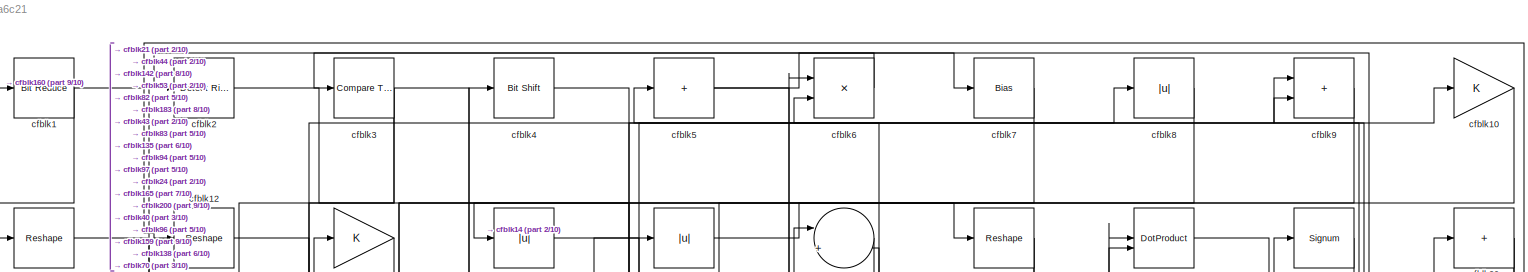
[diagram: root canvas - part 1/10, full width, top band]
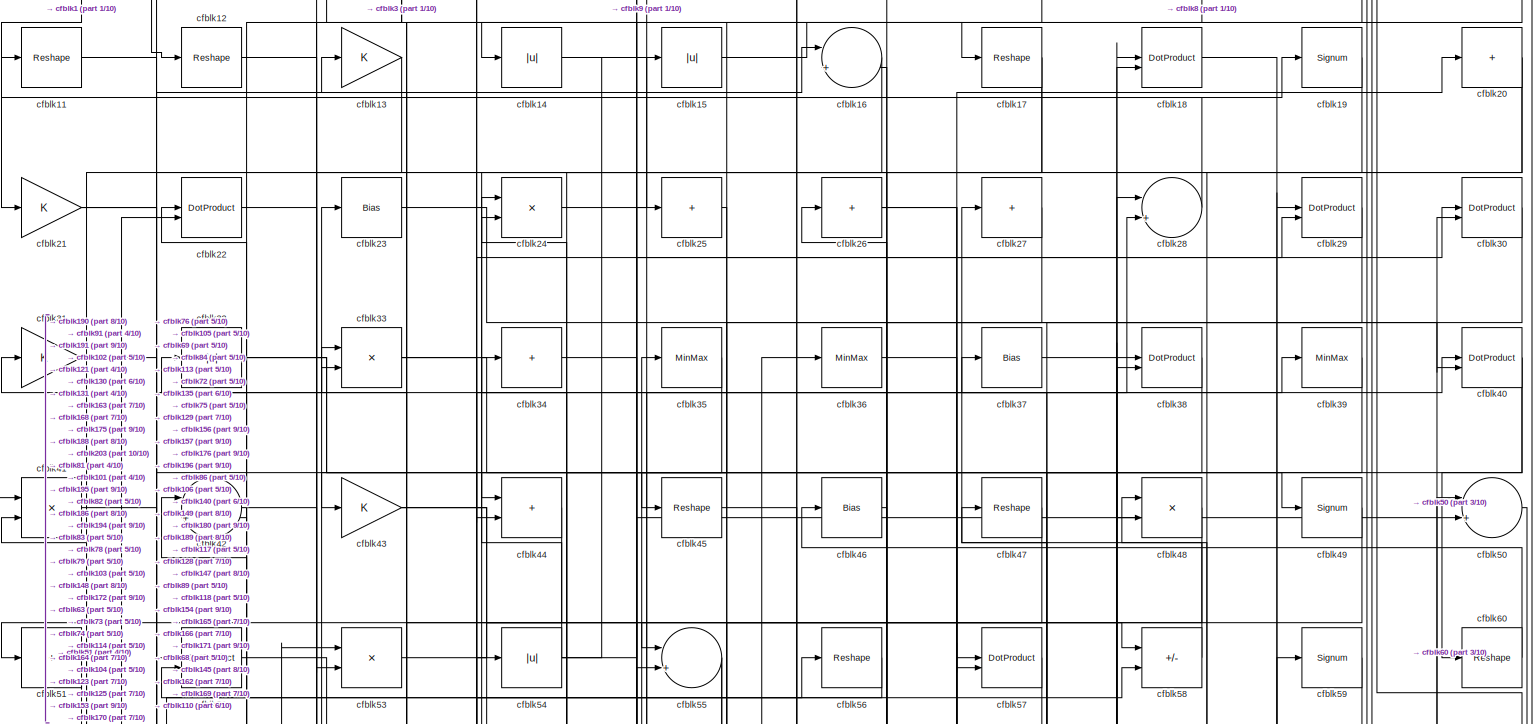
[diagram: root canvas - part 2/10, full width, top band]
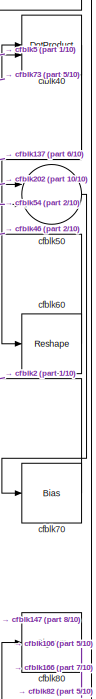
[diagram: root canvas - part 3/10, top right region]
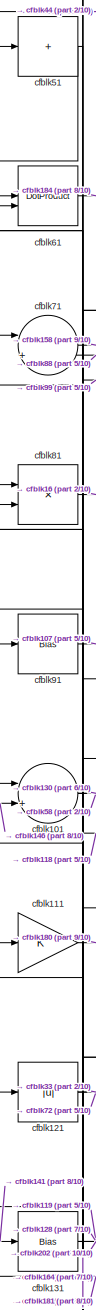
[diagram: root canvas - part 4/10, middle left region]
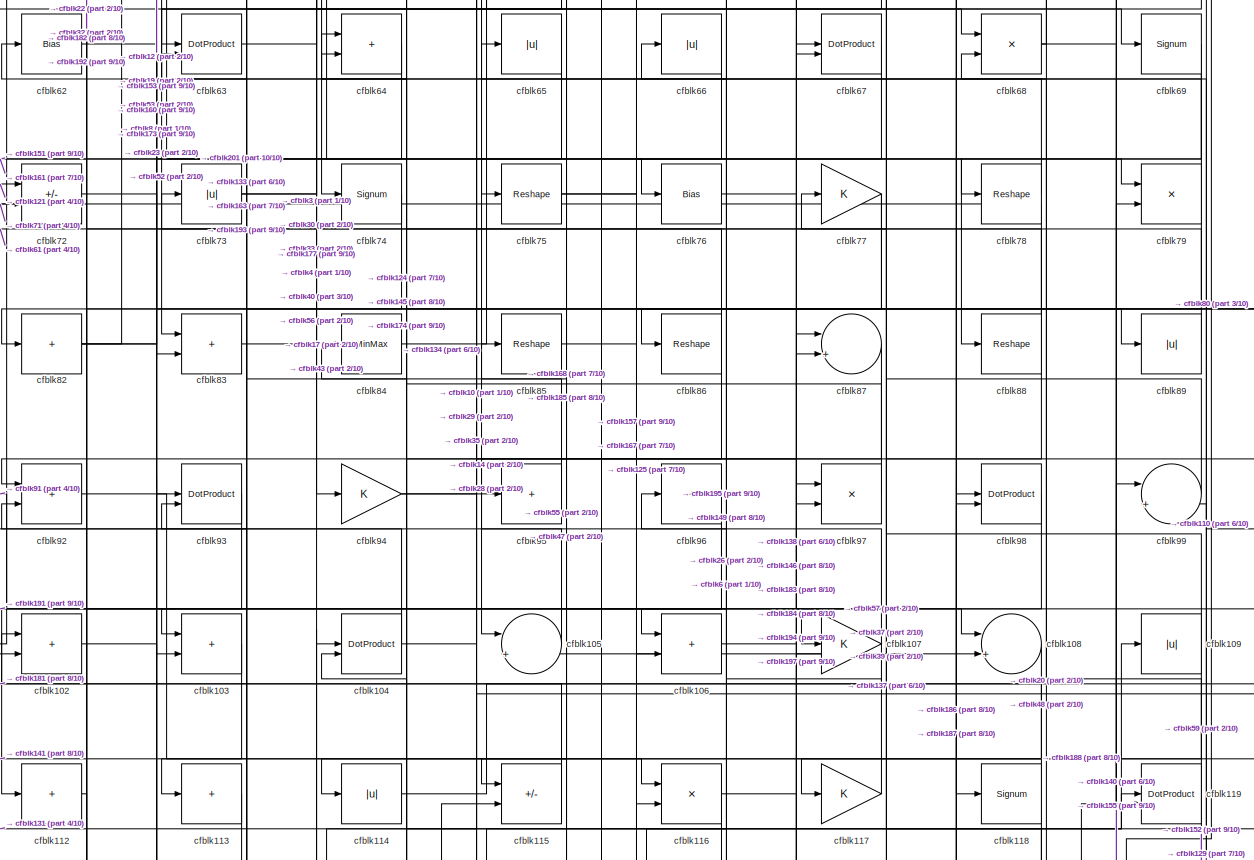
[diagram: root canvas - part 5/10, full width, middle band]
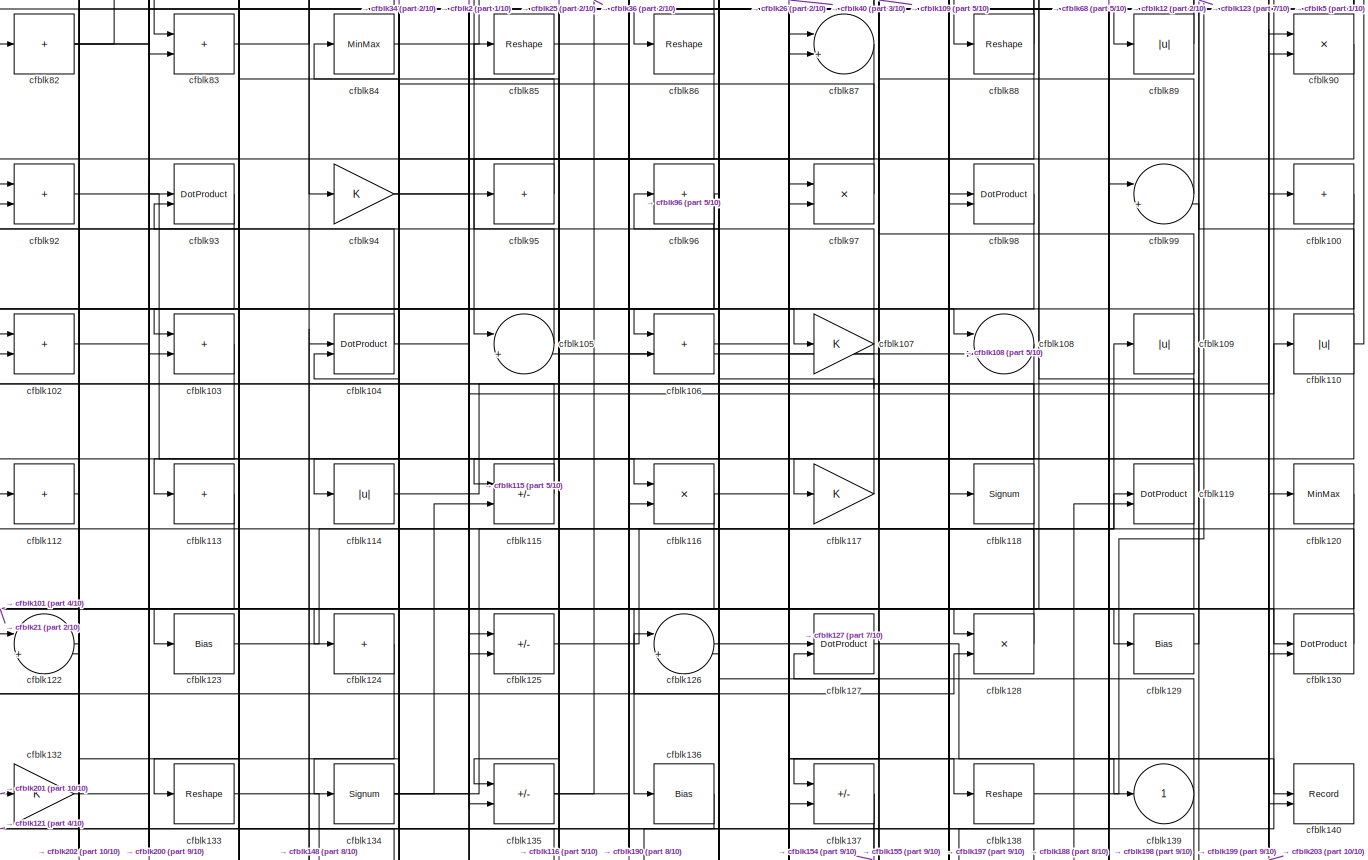
[diagram: root canvas - part 6/10, full width, middle band]
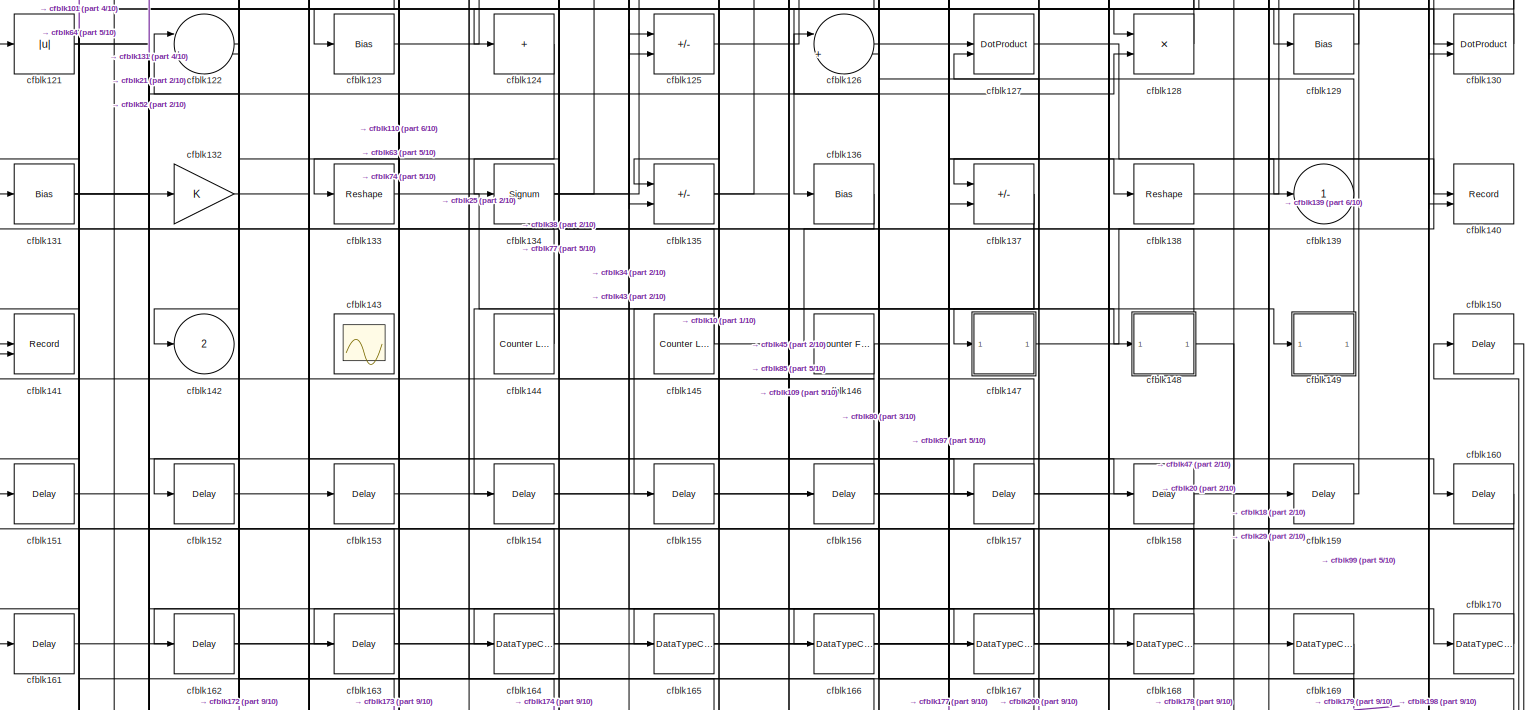
[diagram: root canvas - part 7/10, full width, bottom band]
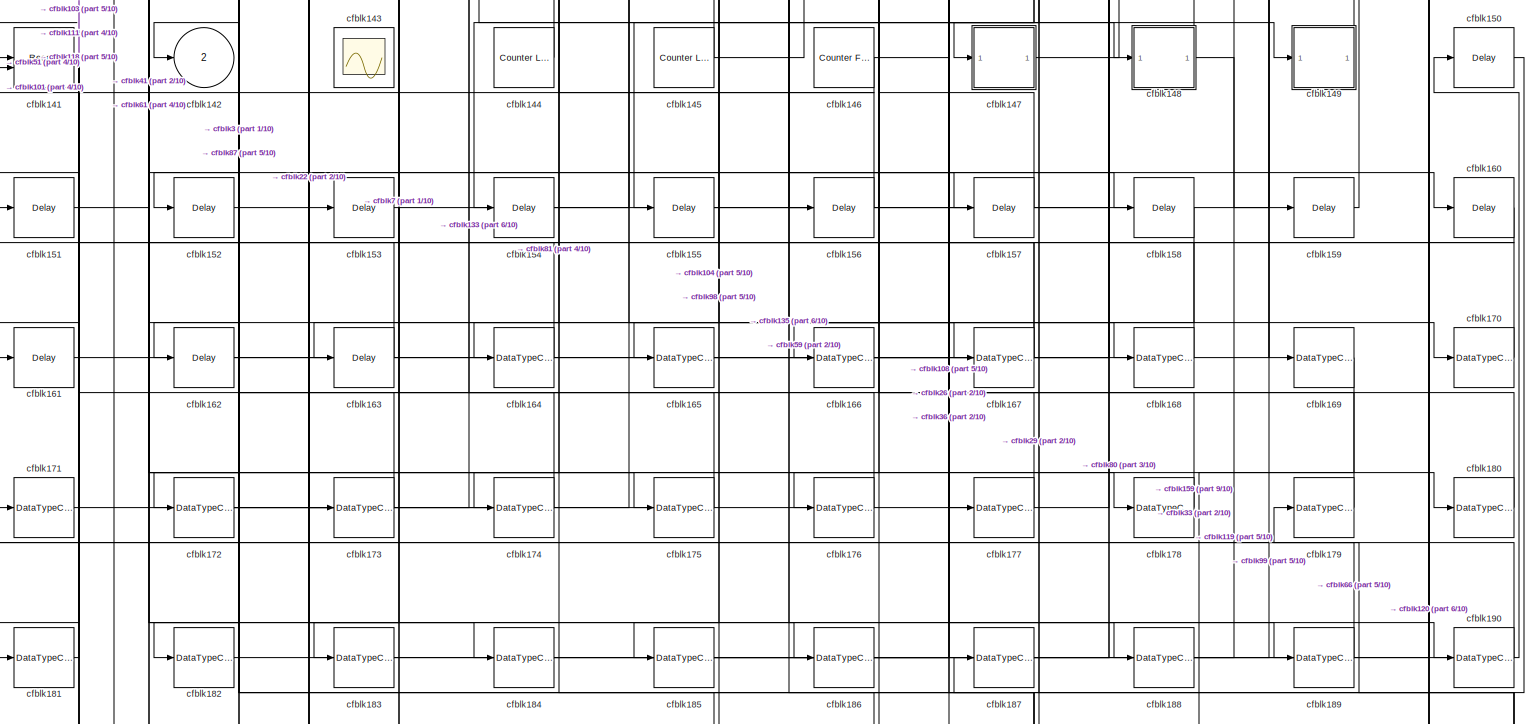
[diagram: root canvas - part 8/10, full width, bottom band]
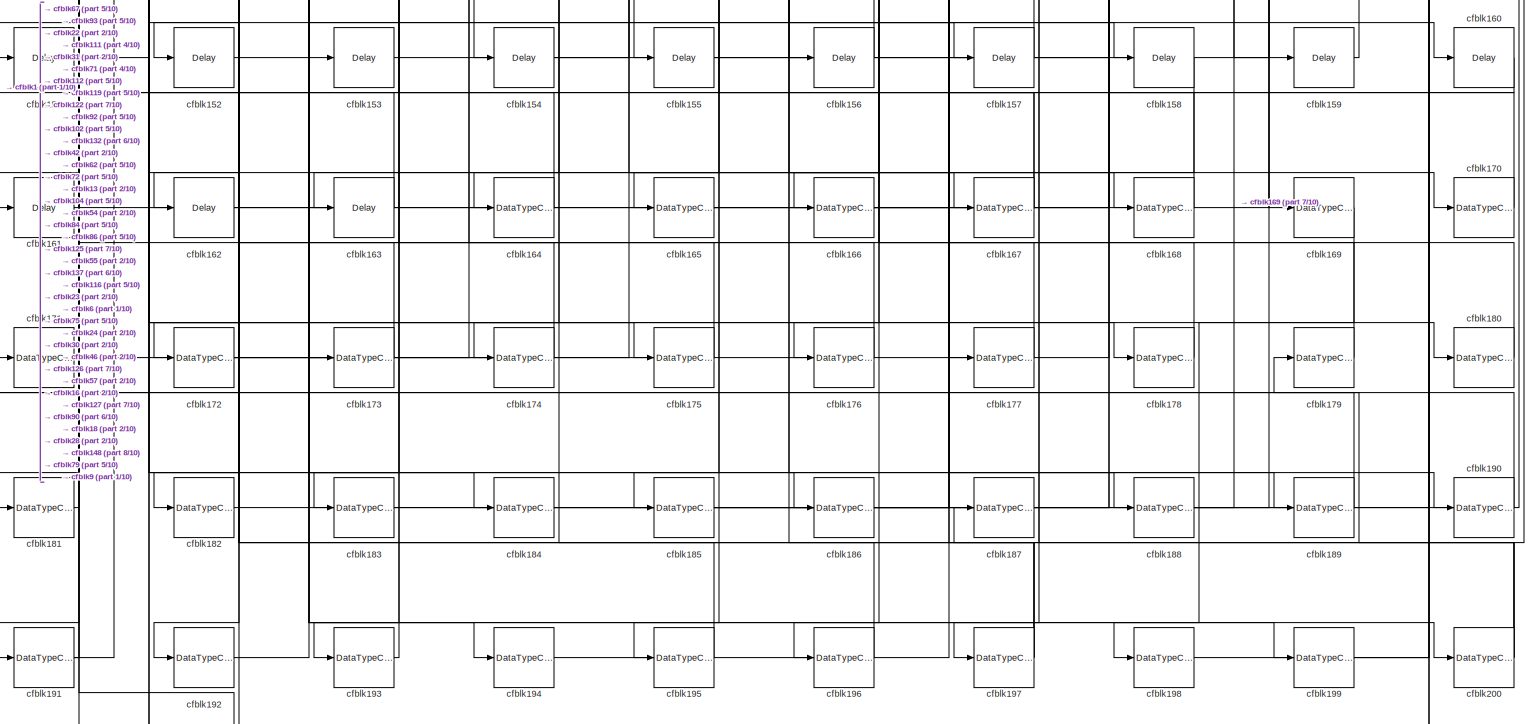
[diagram: root canvas - part 9/10, full width, bottom band]
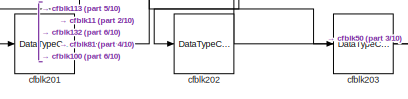
[diagram: root canvas - part 10/10, bottom left region]
MODEL slx_81e3486a6c21
KIND model
CONFIG AbsTol = auto
CONFIG EnableMultiTasking = off
CONFIG FixedStep = auto
CONFIG MaxStep = auto
CONFIG MinStep = auto
CONFIG RelTol = 1e-3
CONFIG SampleTimeConstraint = Unconstrained
CONFIG SolverName = VariableStepAuto
CONFIG StartTime = 0.0
CONFIG StopTime = 10.0
BLOCK [Reference] cfblk1  REF=hdlsllib/Logic and Bit
Operations/Bit Reduce
  SourceBlock = hdlsllib/Logic and Bit\nOperations/Bit Reduce
  SourceType = Bit Reduce
BLOCK [Gain] cfblk10
BLOCK [Sum] cfblk100
  IconShape = rectangular
  Inputs = +
BLOCK [Sum] cfblk101
  Inputs = |++
BLOCK [Sum] cfblk102
  IconShape = rectangular
BLOCK [Sum] cfblk103
  IconShape = rectangular
BLOCK [DotProduct] cfblk104
  OutDataTypeStr = Inherit: Inherit via internal rule
BLOCK [Sum] cfblk105
  Inputs = |++
BLOCK [Sum] cfblk106
  IconShape = rectangular
BLOCK [Gain] cfblk107
BLOCK [Sum] cfblk108
  Inputs = |++
BLOCK [Abs] cfblk109
  SaturateOnIntegerOverflow = off
BLOCK [Reshape] cfblk11
BLOCK [Abs] cfblk110
  SaturateOnIntegerOverflow = off
BLOCK [Gain] cfblk111
BLOCK [Sum] cfblk112
  IconShape = rectangular
  Inputs = +
BLOCK [Sum] cfblk113
  IconShape = rectangular
  Inputs = +
BLOCK [Abs] cfblk114
  SaturateOnIntegerOverflow = off
BLOCK [Sum] cfblk115
  IconShape = rectangular
  Inputs = +-
BLOCK [Product] cfblk116
  Inputs = */
  RndMeth = Zero
  SaturateOnIntegerOverflow = on
BLOCK [Gain] cfblk117
BLOCK [Signum] cfblk118
BLOCK [DotProduct] cfblk119
  OutDataTypeStr = Inherit: Inherit via internal rule
BLOCK [Reshape] cfblk12
BLOCK [MinMax] cfblk120
BLOCK [Abs] cfblk121
  SaturateOnIntegerOverflow = off
BLOCK [Sum] cfblk122
  Inputs = |++
BLOCK [Bias] cfblk123
  Bias = 0.0
  SaturateOnIntegerOverflow = off
BLOCK [Sum] cfblk124
  IconShape = rectangular
  Inputs = +
BLOCK [Sum] cfblk125
  IconShape = rectangular
  Inputs = +-
BLOCK [Sum] cfblk126
  Inputs = |++
BLOCK [DotProduct] cfblk127
  OutDataTypeStr = Inherit: Inherit via internal rule
BLOCK [Product] cfblk128
  Inputs = */
  RndMeth = Zero
  SaturateOnIntegerOverflow = on
BLOCK [Bias] cfblk129
  Bias = 0.0
  SaturateOnIntegerOverflow = off
BLOCK [Gain] cfblk13
BLOCK [DotProduct] cfblk130
  OutDataTypeStr = Inherit: Inherit via internal rule
BLOCK [Bias] cfblk131
  Bias = 0.0
  SaturateOnIntegerOverflow = off
BLOCK [Gain] cfblk132
BLOCK [Reshape] cfblk133
BLOCK [Signum] cfblk134
BLOCK [Sum] cfblk135
  IconShape = rectangular
  Inputs = +-
BLOCK [Bias] cfblk136
  Bias = 0.0
  SaturateOnIntegerOverflow = off
BLOCK [Sum] cfblk137
  IconShape = rectangular
  Inputs = +-
BLOCK [Reshape] cfblk138
BLOCK [Outport] cfblk139
  VectorParamsAs1DForOutWhenUnconnected = off
BLOCK [Abs] cfblk14
  SaturateOnIntegerOverflow = off
BLOCK [Record] cfblk140
  CompatibilityTag = XY
  FileSettingsInternal = {"entries":[{"content":{"excelSettings":{"content":{},"type":"Streamout.ExcelSettings"}},"type":"Streamout.FileSettingStorage","uuid":""}],"packageUris":["http:\/\/schema.mathworks.com\/mf0\/streamout_blocks\/R2020a"],"version":"1.0"}
  Layout = [1 1]
  SignalsInternal = {"entries":[{"content":{"signals":[{"content":{"blockPath":[],"dimensions":[1],"domain":"","lineColor":"#a2142f","plots":[1],"port":1,"signalID":1241,"signalName":"XY Graph:1"},"type":"RecordBlkView.Signal","uuid":""},{"content":{"blockPath":[],"dimensions":[1],"domain":"","lineColor":"#139fff","plots":[1],"port":2,"signalID":1244,"signalName":"XY Graph:2"},"type":"RecordBlkView.Signal","uuid":""}...<+146ch>
  VisualizationBindings = {"xyplotplugin":{"info":[{"series":[{"bindingParametersList":[{"parameter":"X-Axis","signalID":1241,"signalName":"XY Graph:1"},{"parameter":"Y-Axis","signalID":1244,"signalName":"XY Graph:2"}],"seriesID":14841}],"subplotID":1}]}}
  st = -1
BLOCK [Record] cfblk141
  CompatibilityTag = XY
  FileSettingsInternal = {"entries":[{"content":{"excelSettings":{"content":{},"type":"Streamout.ExcelSettings"}},"type":"Streamout.FileSettingStorage","uuid":""}],"packageUris":["http:\/\/schema.mathworks.com\/mf0\/streamout_blocks\/R2020a"],"version":"1.0"}
  Layout = [1 1]
  SignalsInternal = {"entries":[{"content":{"signals":[{"content":{"blockPath":[],"dimensions":[1],"domain":"","lineColor":"#a2142f","plots":[1],"port":1,"signalID":1249,"signalName":"XY Graph:1"},"type":"RecordBlkView.Signal","uuid":""},{"content":{"blockPath":[],"dimensions":[1],"domain":"","lineColor":"#139fff","plots":[1],"port":2,"signalID":1252,"signalName":"XY Graph:2"},"type":"RecordBlkView.Signal","uuid":""}...<+146ch>
  VisualizationBindings = {"xyplotplugin":{"info":[{"series":[{"bindingParametersList":[{"parameter":"X-Axis","signalID":1249,"signalName":"XY Graph:1"},{"parameter":"Y-Axis","signalID":1252,"signalName":"XY Graph:2"}],"seriesID":4770}],"subplotID":1}]}}
  st = -1
BLOCK [Outport] cfblk142
  Port = 2
  VectorParamsAs1DForOutWhenUnconnected = off
BLOCK [Scope] cfblk143
  Floating = on
  NumInputPorts = 1
  ScopeSpecificationString = Simulink.scopes.TimeScopeBlockCfg('CurrentConfiguration', extmgr.ConfigurationSet(extmgr.Configuration('Core','General UI',true,'FigureColor',[0.156862745098039 0.156862745098039 0.156862745098039]),extmgr.Configuration('Core','Source UI',true),extmgr.Configuration('Sources','WiredSimulink',true,'DataLoggingVariableName','ScopeData1','DataLoggingSaveFormat','StructureWithTime','DataLoggingLimitDat...<+2713ch>
BLOCK [Reference] cfblk144  REF=hdlsllib/Sources/Counter
Limited
  SourceBlock = hdlsllib/Sources/Counter\nLimited
  SourceType = Counter Limited
BLOCK [Reference] cfblk145  REF=hdlsllib/Sources/Counter
Limited
  SourceBlock = hdlsllib/Sources/Counter\nLimited
  SourceType = Counter Limited
BLOCK [Reference] cfblk146  REF=hdlsllib/Sources/Counter
Free-Running
  SourceBlock = hdlsllib/Sources/Counter\nFree-Running
  SourceType = Counter Free-Running
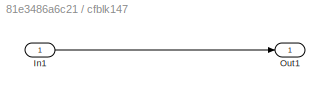
BLOCK [SubSystem] cfblk147
  LibrarySourceBlock = hdlsllib/Ports &\nSubsystems/Subsystem
BLOCK [Inport] cfblk147/In1
BLOCK [Outport] cfblk147/Out1
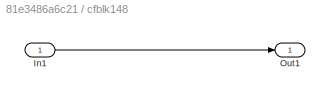
BLOCK [SubSystem] cfblk148
  LibrarySourceBlock = hdlsllib/Ports &\nSubsystems/Subsystem
BLOCK [Inport] cfblk148/In1
BLOCK [Outport] cfblk148/Out1
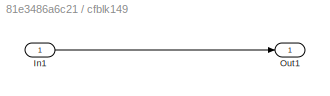
BLOCK [SubSystem] cfblk149
  LibrarySourceBlock = hdlsllib/Ports &\nSubsystems/Subsystem
BLOCK [Inport] cfblk149/In1
BLOCK [Outport] cfblk149/Out1
BLOCK [Abs] cfblk15
  SaturateOnIntegerOverflow = off
BLOCK [Delay] cfblk150
  InputPortMap = u0
  SampleTime = 1
BLOCK [Delay] cfblk151
  InputPortMap = u0
  SampleTime = 1
BLOCK [Delay] cfblk152
  InputPortMap = u0
  SampleTime = 1
BLOCK [Delay] cfblk153
  InputPortMap = u0
  SampleTime = 1
BLOCK [Delay] cfblk154
  InputPortMap = u0
  SampleTime = 1
BLOCK [Delay] cfblk155
  InputPortMap = u0
  SampleTime = 1
BLOCK [Delay] cfblk156
  InputPortMap = u0
  SampleTime = 1
BLOCK [Delay] cfblk157
  InputPortMap = u0
  SampleTime = 1
BLOCK [Delay] cfblk158
  InputPortMap = u0
  SampleTime = 1
BLOCK [Delay] cfblk159
  InputPortMap = u0
  SampleTime = 1
BLOCK [Sum] cfblk16
  Inputs = |++
BLOCK [Delay] cfblk160
  InputPortMap = u0
  SampleTime = 1
BLOCK [Delay] cfblk161
  InputPortMap = u0
  SampleTime = 1
BLOCK [Delay] cfblk162
  InputPortMap = u0
  SampleTime = 1
BLOCK [Delay] cfblk163
  InputPortMap = u0
  SampleTime = 1
BLOCK [DataTypeConversion] cfblk164
  OutDataTypeStr = uint8
  RndMeth = Floor
  SaturateOnIntegerOverflow = off
BLOCK [DataTypeConversion] cfblk165
  OutDataTypeStr = uint8
  RndMeth = Floor
  SaturateOnIntegerOverflow = off
BLOCK [DataTypeConversion] cfblk166
  OutDataTypeStr = uint8
  RndMeth = Floor
  SaturateOnIntegerOverflow = off
BLOCK [DataTypeConversion] cfblk167
  RndMeth = Floor
  SaturateOnIntegerOverflow = off
BLOCK [DataTypeConversion] cfblk168
  OutDataTypeStr = uint8
  RndMeth = Floor
  SaturateOnIntegerOverflow = off
BLOCK [DataTypeConversion] cfblk169
  OutDataTypeStr = uint8
  RndMeth = Floor
  SaturateOnIntegerOverflow = off
BLOCK [Reshape] cfblk17
BLOCK [DataTypeConversion] cfblk170
  OutDataTypeStr = uint8
  RndMeth = Floor
  SaturateOnIntegerOverflow = off
BLOCK [DataTypeConversion] cfblk171
  OutDataTypeStr = uint8
  RndMeth = Floor
  SaturateOnIntegerOverflow = off
BLOCK [DataTypeConversion] cfblk172
  RndMeth = Floor
  SaturateOnIntegerOverflow = off
BLOCK [DataTypeConversion] cfblk173
  OutDataTypeStr = uint8
  RndMeth = Floor
  SaturateOnIntegerOverflow = off
BLOCK [DataTypeConversion] cfblk174
  OutDataTypeStr = uint8
  RndMeth = Floor
  SaturateOnIntegerOverflow = off
BLOCK [DataTypeConversion] cfblk175
  OutDataTypeStr = uint8
  RndMeth = Floor
  SaturateOnIntegerOverflow = off
BLOCK [DataTypeConversion] cfblk176
  OutDataTypeStr = uint8
  RndMeth = Floor
  SaturateOnIntegerOverflow = off
BLOCK [DataTypeConversion] cfblk177
  OutDataTypeStr = uint8
  RndMeth = Floor
  SaturateOnIntegerOverflow = off
BLOCK [DataTypeConversion] cfblk178
  OutDataTypeStr = uint8
  RndMeth = Floor
  SaturateOnIntegerOverflow = off
BLOCK [DataTypeConversion] cfblk179
  OutDataTypeStr = uint8
  RndMeth = Floor
  SaturateOnIntegerOverflow = off
BLOCK [DotProduct] cfblk18
  OutDataTypeStr = Inherit: Inherit via internal rule
BLOCK [DataTypeConversion] cfblk180
  OutDataTypeStr = uint8
  RndMeth = Floor
  SaturateOnIntegerOverflow = off
BLOCK [DataTypeConversion] cfblk181
  OutDataTypeStr = uint8
  RndMeth = Floor
  SaturateOnIntegerOverflow = off
BLOCK [DataTypeConversion] cfblk182
  OutDataTypeStr = uint8
  RndMeth = Floor
  SaturateOnIntegerOverflow = off
BLOCK [DataTypeConversion] cfblk183
  OutDataTypeStr = uint8
  RndMeth = Floor
  SaturateOnIntegerOverflow = off
BLOCK [DataTypeConversion] cfblk184
  OutDataTypeStr = uint8
  RndMeth = Floor
  SaturateOnIntegerOverflow = off
BLOCK [DataTypeConversion] cfblk185
  OutDataTypeStr = uint8
  RndMeth = Floor
  SaturateOnIntegerOverflow = off
BLOCK [DataTypeConversion] cfblk186
  OutDataTypeStr = uint8
  RndMeth = Floor
  SaturateOnIntegerOverflow = off
BLOCK [DataTypeConversion] cfblk187
  OutDataTypeStr = uint8
  RndMeth = Floor
  SaturateOnIntegerOverflow = off
BLOCK [DataTypeConversion] cfblk188
  RndMeth = Floor
  SaturateOnIntegerOverflow = off
BLOCK [DataTypeConversion] cfblk189
  OutDataTypeStr = uint8
  RndMeth = Floor
  SaturateOnIntegerOverflow = off
BLOCK [Signum] cfblk19
BLOCK [DataTypeConversion] cfblk190
  OutDataTypeStr = uint8
  RndMeth = Floor
  SaturateOnIntegerOverflow = off
BLOCK [DataTypeConversion] cfblk191
  RndMeth = Floor
  SaturateOnIntegerOverflow = off
BLOCK [DataTypeConversion] cfblk192
  OutDataTypeStr = uint8
  RndMeth = Floor
  SaturateOnIntegerOverflow = off
BLOCK [DataTypeConversion] cfblk193
  OutDataTypeStr = uint8
  RndMeth = Floor
  SaturateOnIntegerOverflow = off
BLOCK [DataTypeConversion] cfblk194
  OutDataTypeStr = uint8
  RndMeth = Floor
  SaturateOnIntegerOverflow = off
BLOCK [DataTypeConversion] cfblk195
  OutDataTypeStr = uint8
  RndMeth = Floor
  SaturateOnIntegerOverflow = off
BLOCK [DataTypeConversion] cfblk196
  OutDataTypeStr = uint8
  RndMeth = Floor
  SaturateOnIntegerOverflow = off
BLOCK [DataTypeConversion] cfblk197
  RndMeth = Floor
  SaturateOnIntegerOverflow = off
BLOCK [DataTypeConversion] cfblk198
  OutDataTypeStr = uint8
  RndMeth = Floor
  SaturateOnIntegerOverflow = off
BLOCK [DataTypeConversion] cfblk199
  OutDataTypeStr = uint8
  RndMeth = Floor
  SaturateOnIntegerOverflow = off
BLOCK [Reference] cfblk2  REF=hdlsllib/Logic and Bit
Operations/Detect Rise
Positive
  SourceBlock = hdlsllib/Logic and Bit\nOperations/Detect Rise\nPositive
  SourceType = Detect Rise Positive
BLOCK [Sum] cfblk20
  IconShape = rectangular
  Inputs = +
BLOCK [DataTypeConversion] cfblk200
  RndMeth = Floor
  SaturateOnIntegerOverflow = off
BLOCK [DataTypeConversion] cfblk201
  OutDataTypeStr = uint8
  RndMeth = Floor
  SaturateOnIntegerOverflow = off
BLOCK [DataTypeConversion] cfblk202
  RndMeth = Floor
  SaturateOnIntegerOverflow = off
BLOCK [DataTypeConversion] cfblk203
  OutDataTypeStr = uint8
  RndMeth = Floor
  SaturateOnIntegerOverflow = off
BLOCK [Gain] cfblk21
BLOCK [DotProduct] cfblk22
  OutDataTypeStr = Inherit: Inherit via internal rule
BLOCK [Bias] cfblk23
  Bias = 0.0
  SaturateOnIntegerOverflow = off
BLOCK [Product] cfblk24
  Inputs = */
  RndMeth = Zero
  SaturateOnIntegerOverflow = on
BLOCK [Sum] cfblk25
  IconShape = rectangular
  Inputs = +
BLOCK [Sum] cfblk26
  IconShape = rectangular
  Inputs = +
BLOCK [Sum] cfblk27
  IconShape = rectangular
  Inputs = +
BLOCK [Sum] cfblk28
  Inputs = |++
BLOCK [DotProduct] cfblk29
  OutDataTypeStr = Inherit: Inherit via internal rule
BLOCK [Reference] cfblk3  REF=hdlsllib/Logic and Bit
Operations/Compare
To Zero
  SourceBlock = hdlsllib/Logic and Bit\nOperations/Compare\nTo Zero
  SourceType = Compare To Zero
BLOCK [DotProduct] cfblk30
  OutDataTypeStr = Inherit: Inherit via internal rule
BLOCK [Gain] cfblk31
BLOCK [Abs] cfblk32
  SaturateOnIntegerOverflow = off
BLOCK [Product] cfblk33
  Inputs = */
  RndMeth = Zero
  SaturateOnIntegerOverflow = on
BLOCK [Sum] cfblk34
  IconShape = rectangular
  Inputs = +
BLOCK [MinMax] cfblk35
BLOCK [MinMax] cfblk36
BLOCK [Bias] cfblk37
  Bias = 0.0
  SaturateOnIntegerOverflow = off
BLOCK [DotProduct] cfblk38
  OutDataTypeStr = Inherit: Inherit via internal rule
BLOCK [MinMax] cfblk39
BLOCK [Reference] cfblk4  REF=hdlsllib/Logic and Bit
Operations/Bit Shift
  SourceBlock = hdlsllib/Logic and Bit\nOperations/Bit Shift
  SourceType = Bit Shift
BLOCK [DotProduct] cfblk40
  OutDataTypeStr = Inherit: Inherit via internal rule
BLOCK [Product] cfblk41
  Inputs = */
  RndMeth = Zero
  SaturateOnIntegerOverflow = on
BLOCK [Sum] cfblk42
  Inputs = |++
BLOCK [Gain] cfblk43
BLOCK [Sum] cfblk44
  IconShape = rectangular
BLOCK [Reshape] cfblk45
BLOCK [Bias] cfblk46
  Bias = 0.0
  SaturateOnIntegerOverflow = off
BLOCK [Reshape] cfblk47
BLOCK [Product] cfblk48
  Inputs = */
  RndMeth = Zero
  SaturateOnIntegerOverflow = on
BLOCK [Signum] cfblk49
BLOCK [Sum] cfblk5
  IconShape = rectangular
  Inputs = +
BLOCK [Sum] cfblk50
  Inputs = |++
BLOCK [Sum] cfblk51
  IconShape = rectangular
  Inputs = +
BLOCK [DotProduct] cfblk52
  OutDataTypeStr = Inherit: Inherit via internal rule
BLOCK [Product] cfblk53
  Inputs = */
  RndMeth = Zero
  SaturateOnIntegerOverflow = on
BLOCK [Abs] cfblk54
  SaturateOnIntegerOverflow = off
BLOCK [Sum] cfblk55
  Inputs = |++
BLOCK [Reshape] cfblk56
BLOCK [DotProduct] cfblk57
  OutDataTypeStr = Inherit: Inherit via internal rule
BLOCK [Sum] cfblk58
  IconShape = rectangular
  Inputs = +-
BLOCK [Signum] cfblk59
BLOCK [Product] cfblk6
  Inputs = */
  RndMeth = Zero
  SaturateOnIntegerOverflow = on
BLOCK [Reshape] cfblk60
BLOCK [DotProduct] cfblk61
  OutDataTypeStr = Inherit: Inherit via internal rule
BLOCK [Bias] cfblk62
  Bias = 0.0
  SaturateOnIntegerOverflow = off
BLOCK [DotProduct] cfblk63
  OutDataTypeStr = Inherit: Inherit via internal rule
BLOCK [Sum] cfblk64
  IconShape = rectangular
BLOCK [Abs] cfblk65
  SaturateOnIntegerOverflow = off
BLOCK [Abs] cfblk66
  SaturateOnIntegerOverflow = off
BLOCK [DotProduct] cfblk67
  OutDataTypeStr = Inherit: Inherit via internal rule
BLOCK [Product] cfblk68
  Inputs = */
  RndMeth = Zero
  SaturateOnIntegerOverflow = on
BLOCK [Signum] cfblk69
BLOCK [Bias] cfblk7
  Bias = 0.0
  SaturateOnIntegerOverflow = off
BLOCK [Bias] cfblk70
  Bias = 0.0
  SaturateOnIntegerOverflow = off
BLOCK [Sum] cfblk71
  Inputs = |++
BLOCK [Sum] cfblk72
  IconShape = rectangular
  Inputs = +-
BLOCK [Abs] cfblk73
  SaturateOnIntegerOverflow = off
BLOCK [Signum] cfblk74
BLOCK [Reshape] cfblk75
BLOCK [Bias] cfblk76
  Bias = 0.0
  SaturateOnIntegerOverflow = off
BLOCK [Gain] cfblk77
BLOCK [Reshape] cfblk78
BLOCK [Product] cfblk79
  Inputs = */
  RndMeth = Zero
  SaturateOnIntegerOverflow = on
BLOCK [Abs] cfblk8
  SaturateOnIntegerOverflow = off
BLOCK [Signum] cfblk80
BLOCK [Product] cfblk81
  Inputs = */
  RndMeth = Zero
  SaturateOnIntegerOverflow = on
BLOCK [Sum] cfblk82
  IconShape = rectangular
  Inputs = +
BLOCK [Sum] cfblk83
  IconShape = rectangular
BLOCK [MinMax] cfblk84
BLOCK [Reshape] cfblk85
BLOCK [Reshape] cfblk86
BLOCK [Sum] cfblk87
  Inputs = |++
BLOCK [Reshape] cfblk88
BLOCK [Abs] cfblk89
  SaturateOnIntegerOverflow = off
BLOCK [Sum] cfblk9
  IconShape = rectangular
BLOCK [Product] cfblk90
  Inputs = */
  RndMeth = Zero
  SaturateOnIntegerOverflow = on
BLOCK [Bias] cfblk91
  Bias = 0.0
  SaturateOnIntegerOverflow = off
BLOCK [Sum] cfblk92
  IconShape = rectangular
BLOCK [DotProduct] cfblk93
  OutDataTypeStr = Inherit: Inherit via internal rule
BLOCK [Gain] cfblk94
BLOCK [Sum] cfblk95
  IconShape = rectangular
  Inputs = +
BLOCK [Sum] cfblk96
  IconShape = rectangular
  Inputs = +
BLOCK [Product] cfblk97
  Inputs = */
  RndMeth = Zero
  SaturateOnIntegerOverflow = on
BLOCK [DotProduct] cfblk98
  OutDataTypeStr = Inherit: Inherit via internal rule
BLOCK [Sum] cfblk99
  Inputs = |++
LINE cfblk100:1 -> cfblk202:1
NET cfblk101:1 -> cfblk130:1, cfblk58:2
LINE cfblk102:1 -> cfblk160:1
LINE cfblk103:1 -> cfblk141:1
NET cfblk104:1 -> cfblk22:1, cfblk29:2
LINE cfblk105:1 -> cfblk35:1
LINE cfblk106:1 -> cfblk20:1
NET cfblk107:1 -> cfblk105:2, cfblk71:1
LINE cfblk108:1 -> cfblk134:1
NET cfblk109:1 -> cfblk137:1, cfblk77:1
LINE cfblk10:1 -> cfblk165:1
NET cfblk110:1 -> cfblk123:1, cfblk12:1, cfblk68:2
LINE cfblk111:1 -> cfblk180:1
LINE cfblk112:1 -> cfblk192:1
LINE cfblk113:1 -> cfblk201:1
LINE cfblk114:1 -> cfblk30:2
LINE cfblk115:1 -> cfblk102:1
NET cfblk116:1 -> cfblk138:1, cfblk195:1
LINE cfblk117:1 -> cfblk26:1
NET cfblk118:1 -> cfblk181:1, cfblk61:2
NET cfblk119:1 -> cfblk152:1, cfblk65:1
LINE cfblk11:1 -> cfblk203:1
LINE cfblk120:1 -> cfblk136:1
NET cfblk121:1 -> cfblk33:1, cfblk72:1
LINE cfblk122:1 -> cfblk172:1
LINE cfblk123:1 -> cfblk25:1
LINE cfblk124:1 -> cfblk162:1
LINE cfblk125:1 -> cfblk109:1
LINE cfblk126:1 -> cfblk177:1
LINE cfblk127:1 -> cfblk139:1
LINE cfblk128:1 -> cfblk47:1
LINE cfblk129:1 -> cfblk99:2
LINE cfblk12:1 -> cfblk89:1
LINE cfblk130:1 -> cfblk34:1
NET cfblk131:1 -> cfblk119:1, cfblk128:2, cfblk39:1
LINE cfblk132:1 -> cfblk200:1
LINE cfblk133:1 -> cfblk148:1
NET cfblk134:1 -> cfblk110:1, cfblk115:2, cfblk96:1
NET cfblk135:1 -> cfblk190:1, cfblk36:1
LINE cfblk136:1 -> cfblk121:1
NET cfblk137:1 -> cfblk154:1, cfblk155:1
LINE cfblk138:1 -> cfblk5:1
LINE cfblk13:1 -> cfblk51:1
LINE cfblk144:1 -> cfblk81:1
NET cfblk145:1 -> cfblk104:2, cfblk59:1
NET cfblk146:1 -> cfblk101:2, cfblk108:2
LINE cfblk147/In1:1 -> cfblk147/Out1:1
LINE cfblk147:1 -> cfblk80:1
LINE cfblk148/In1:1 -> cfblk148/Out1:1
NET cfblk148:1 -> cfblk159:1, cfblk33:2
LINE cfblk149/In1:1 -> cfblk149/Out1:1
LINE cfblk149:1 -> cfblk66:1
LINE cfblk14:1 -> cfblk69:1
LINE cfblk150:1 -> cfblk187:1
LINE cfblk151:1 -> cfblk178:1
LINE cfblk152:1 -> cfblk199:1
LINE cfblk153:1 -> cfblk55:2
LINE cfblk154:1 -> cfblk28:1
LINE cfblk155:1 -> cfblk79:2
LINE cfblk156:1 -> cfblk24:2
LINE cfblk157:1 -> cfblk16:2
LINE cfblk158:1 -> cfblk193:1
LINE cfblk159:1 -> cfblk9:2
LINE cfblk15:1 -> cfblk17:1
LINE cfblk160:1 -> cfblk1:1
LINE cfblk161:1 -> cfblk97:1
LINE cfblk162:1 -> cfblk29:1
LINE cfblk163:1 -> cfblk52:1
LINE cfblk164:1 -> cfblk101:1
LINE cfblk165:1 -> cfblk38:1
LINE cfblk166:1 -> cfblk38:2
NET cfblk167:1 -> cfblk127:1, cfblk63:2
LINE cfblk168:1 -> cfblk85:1
LINE cfblk169:1 -> cfblk198:1
LINE cfblk16:1 -> cfblk44:1
LINE cfblk170:1 -> cfblk18:1
LINE cfblk171:1 -> cfblk18:2
NET cfblk172:1 -> cfblk125:1, cfblk54:1
LINE cfblk173:1 -> cfblk122:1
LINE cfblk174:1 -> cfblk122:2
LINE cfblk175:1 -> cfblk13:1
LINE cfblk176:1 -> cfblk31:1
LINE cfblk177:1 -> cfblk104:1
LINE cfblk178:1 -> cfblk126:1
LINE cfblk179:1 -> cfblk126:2
NET cfblk17:1 -> cfblk74:1, cfblk83:2
LINE cfblk180:1 -> cfblk57:1
LINE cfblk181:1 -> cfblk111:1
LINE cfblk182:1 -> cfblk150:1
LINE cfblk183:1 -> cfblk87:1
LINE cfblk184:1 -> cfblk87:2
LINE cfblk185:1 -> cfblk99:1
LINE cfblk186:1 -> cfblk98:1
LINE cfblk187:1 -> cfblk98:2
NET cfblk188:1 -> cfblk119:2, cfblk120:1
LINE cfblk189:1 -> cfblk41:1
LINE cfblk18:1 -> cfblk169:1
LINE cfblk190:1 -> cfblk41:2
NET cfblk191:1 -> cfblk171:1, cfblk22:2
LINE cfblk192:1 -> cfblk93:1
LINE cfblk193:1 -> cfblk93:2
LINE cfblk194:1 -> cfblk67:2
LINE cfblk195:1 -> cfblk42:1
LINE cfblk196:1 -> cfblk42:2
NET cfblk197:1 -> cfblk67:1, cfblk84:1, cfblk92:2
LINE cfblk198:1 -> cfblk90:1
LINE cfblk199:1 -> cfblk90:2
LINE cfblk19:1 -> cfblk86:1
NET cfblk1:1 -> cfblk21:1, cfblk44:2
NET cfblk200:1 -> cfblk127:2, cfblk179:1, cfblk6:1
LINE cfblk201:1 -> cfblk132:1
NET cfblk202:1 -> cfblk50:1, cfblk81:2
LINE cfblk203:1 -> cfblk100:1
NET cfblk20:1 -> cfblk102:2, cfblk128:1
NET cfblk21:1 -> cfblk130:2, cfblk168:1
LINE cfblk22:1 -> cfblk186:1
LINE cfblk23:1 -> cfblk156:1
LINE cfblk24:1 -> cfblk9:1
LINE cfblk25:1 -> cfblk135:1
NET cfblk26:1 -> cfblk140:1, cfblk189:1
LINE cfblk27:1 -> cfblk45:1
LINE cfblk28:1 -> cfblk11:1
LINE cfblk29:1 -> cfblk147:1
LINE cfblk2:1 -> cfblk135:2
LINE cfblk30:1 -> cfblk176:1
LINE cfblk31:1 -> cfblk175:1
NET cfblk32:1 -> cfblk49:1, cfblk57:2
NET cfblk33:1 -> cfblk48:2, cfblk68:1
LINE cfblk34:1 -> cfblk170:1
LINE cfblk35:1 -> cfblk114:1
LINE cfblk36:1 -> cfblk149:1
LINE cfblk37:1 -> cfblk118:1
LINE cfblk38:1 -> cfblk164:1
LINE cfblk39:1 -> cfblk117:1
NET cfblk3:1 -> cfblk142:1, cfblk53:2, cfblk94:1
NET cfblk40:1 -> cfblk137:2, cfblk60:1
LINE cfblk41:1 -> cfblk188:1
LINE cfblk42:1 -> cfblk194:1
NET cfblk43:1 -> cfblk125:2, cfblk76:1
LINE cfblk44:1 -> cfblk91:1
LINE cfblk45:1 -> cfblk129:1
LINE cfblk46:1 -> cfblk196:1
LINE cfblk47:1 -> cfblk75:1
LINE cfblk48:1 -> cfblk103:1
LINE cfblk49:1 -> cfblk55:1
LINE cfblk4:1 -> cfblk97:2
LINE cfblk50:1 -> cfblk70:1
NET cfblk51:1 -> cfblk131:1, cfblk141:2
LINE cfblk52:1 -> cfblk79:1
LINE cfblk53:1 -> cfblk58:1
NET cfblk54:1 -> cfblk15:1, cfblk24:1, cfblk50:2
NET cfblk55:1 -> cfblk113:1, cfblk72:2
LINE cfblk56:1 -> cfblk52:2
LINE cfblk57:1 -> cfblk83:1
LINE cfblk58:1 -> cfblk27:1
LINE cfblk59:1 -> cfblk63:1
NET cfblk5:1 -> cfblk40:2, cfblk7:1
LINE cfblk60:1 -> cfblk46:1
LINE cfblk61:1 -> cfblk184:1
LINE cfblk62:1 -> cfblk173:1
LINE cfblk63:1 -> cfblk56:1
LINE cfblk64:1 -> cfblk161:1
LINE cfblk65:1 -> cfblk103:2
LINE cfblk66:1 -> cfblk116:2
LINE cfblk67:1 -> cfblk151:1
NET cfblk68:1 -> cfblk140:2, cfblk48:1
NET cfblk69:1 -> cfblk115:1, cfblk88:1
LINE cfblk6:1 -> cfblk3:1
LINE cfblk70:1 -> cfblk2:1
LINE cfblk71:1 -> cfblk158:1
LINE cfblk72:1 -> cfblk153:1
NET cfblk73:1 -> cfblk30:1, cfblk40:1
LINE cfblk74:1 -> cfblk163:1
NET cfblk75:1 -> cfblk157:1, cfblk78:1
LINE cfblk76:1 -> cfblk108:1
NET cfblk77:1 -> cfblk106:1, cfblk124:1
LINE cfblk78:1 -> cfblk23:1
NET cfblk79:1 -> cfblk32:1, cfblk92:1
LINE cfblk7:1 -> cfblk183:1
NET cfblk80:1 -> cfblk106:2, cfblk166:1, cfblk82:1
LINE cfblk81:1 -> cfblk16:1
NET cfblk82:1 -> cfblk19:1, cfblk53:1, cfblk8:1
LINE cfblk83:1 -> cfblk4:1
LINE cfblk84:1 -> cfblk28:2
LINE cfblk85:1 -> cfblk167:1
NET cfblk86:1 -> cfblk174:1, cfblk64:2
LINE cfblk87:1 -> cfblk182:1
NET cfblk88:1 -> cfblk62:1, cfblk71:2, cfblk95:1
LINE cfblk89:1 -> cfblk37:1
LINE cfblk8:1 -> cfblk14:1
LINE cfblk90:1 -> cfblk197:1
LINE cfblk91:1 -> cfblk107:1
LINE cfblk92:1 -> cfblk116:1
LINE cfblk93:1 -> cfblk191:1
NET cfblk94:1 -> cfblk105:1, cfblk10:1
LINE cfblk95:1 -> cfblk73:1
NET cfblk96:1 -> cfblk112:1, cfblk133:1, cfblk6:2
LINE cfblk97:1 -> cfblk64:1
LINE cfblk98:1 -> cfblk185:1
LINE cfblk99:1 -> cfblk61:1
LINE cfblk9:1 -> cfblk43:1
note: NET lines group one-source signal fan-out (src -> all destinations, sorted); 1:1 wires keep LINE
